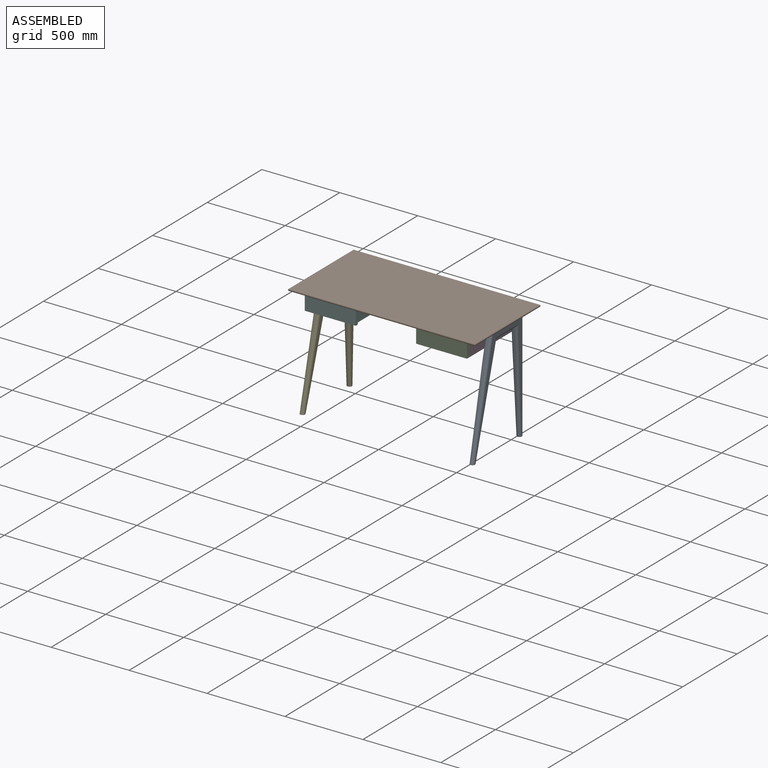
[diagram: assembled view]
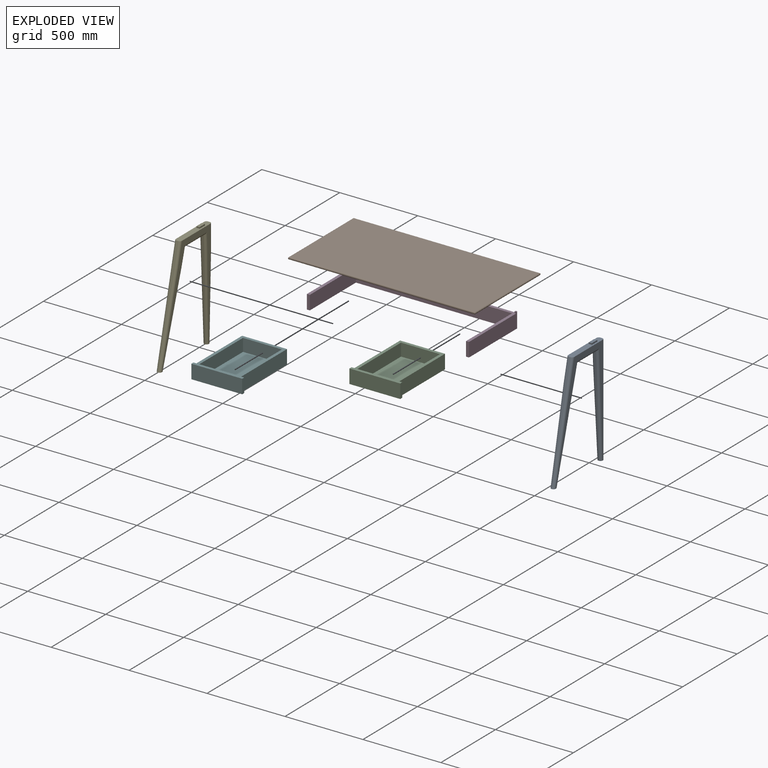
[diagram: exploded view]
GUIDED TOUR — MATED ASSEMBLY (Onshape document 491daf326bf80fedf2588b22, AutoMate assembly 491daf326bf80fedf2588b22_29d949f8aa3b8c9983fa21e3_d84c2a4d1bb332d2d92ca443_default)

This assembly has 6 components, labeled P0..P5 below (a component is one placed occurrence of a part; the same part can appear more than once), held together by 5 mates. A mate is a constraint between two components; its type names the relative motion it leaves free:
  PARALLEL — keeps the two listed directions parallel.
Axis/direction vectors are unit vectors and 'through' points are millimeter coordinates, both in the assembly's world frame.

MATES
  1. PARALLEL "Parallel 3": P3 <-> P1, direction (-1.000, 0.000, 0.000) through (6.17, 39.33, 83.26) mm
  2. PARALLEL "Parallel 2": P4 <-> P1, direction (-1.000, 0.000, 0.000) through (-1048.83, -10.67, 83.26) mm
  3. PARALLEL "Parallel 1": P0 <-> P1, direction (1.000, 0.000, 0.000) through (31.17, -10.67, 83.26) mm
  4. PARALLEL "Parallel 5": P5 <-> P3, direction (0.000, 0.000, 1.000) through (-1009.83, -401.67, 28.26) mm
  5. PARALLEL "Parallel 4": P2 <-> P3, direction (0.000, 0.000, 1.000) through (-7.83, -401.67, 28.26) mm

ASSEMBLY ORDER
  1. P3 — the base component [order verified]
  2. P1 [order verified]
  3. P5 [order verified]
  4. P2 [order verified]
  5. P0 [order verified]
  6. P4 [order verified]
(P1 verified with a relaxed clearance tolerance: the source model stores slight part interference there.)
Order-tag legend:
  [order verified] — this step's position reverses a verified removal order: the component was checked to insert without passing through the ones already placed.

Of the 6 components, 3 carry the full construction recipe — the FeatureScript program that regenerates the part's solid from scratch; the rest are supplied as boundary geometry only.
Each toured component is shown spotlighted twice — in the assembled view, then in the exploded view, where a leader line traces a displaced component back to its assembled socket (saturated green if recipe-attached, orange if geometry-only; every other component desaturated gray) — followed by its recipe or geometry summary and the mates that hold it.
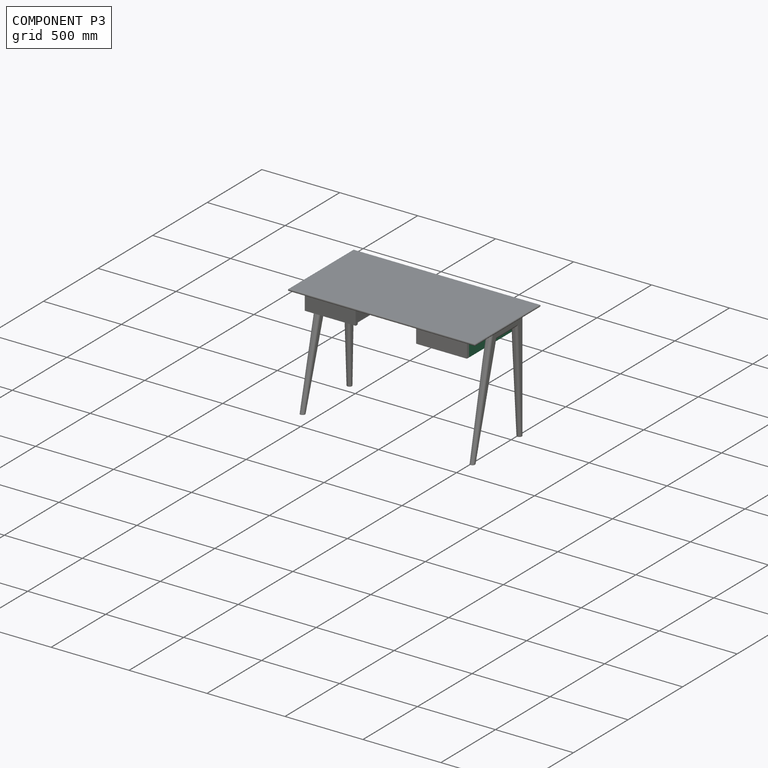
[diagram: component P3 — assembled]
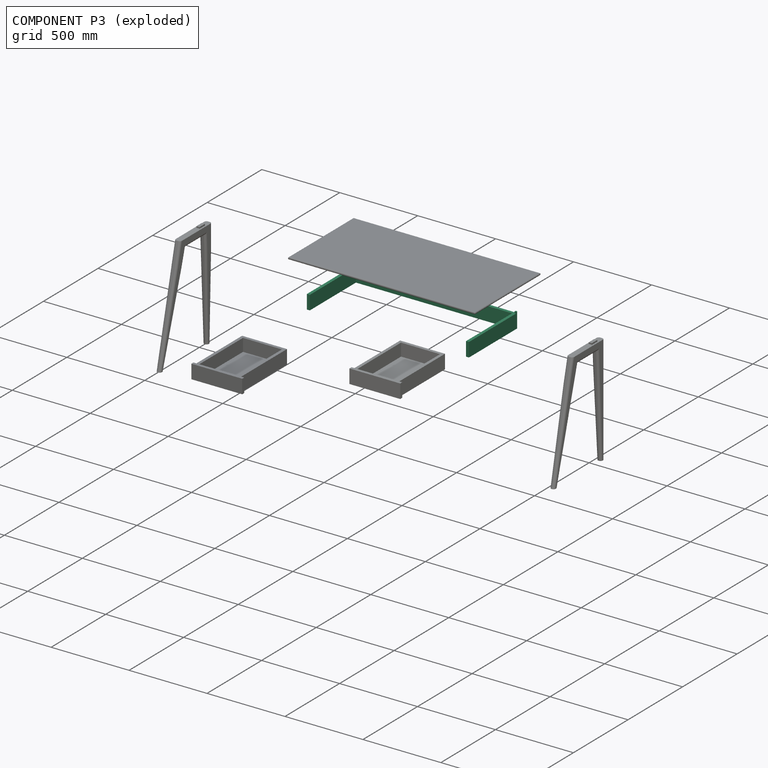
[diagram: component P3 — exploded]
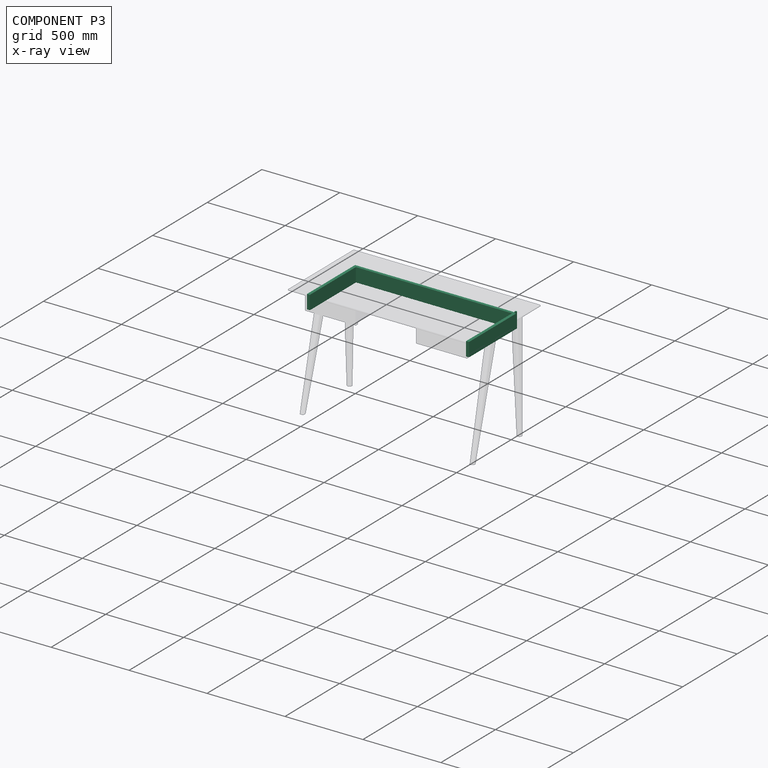
[diagram: component P3 — x-ray view]
COMPONENT P3 — recipe-attached (CADFS 00442519, mesh-verified: the recipe's output STEP matches this component's geometry to below the mesh-comparison resolution (tessellation chordal tolerance ~1.7 mm)).
Held by: PARALLEL mate "Parallel 3" to P1; PARALLEL mate "Parallel 5" to P5; PARALLEL mate "Parallel 4" to P2.
Construction recipe (FeatureScript — the CAD program that rebuilds this solid; sketch coordinates are in the units given by the * unit suffixes, e.g. mm):

FeatureScript 1511;
import(path : "onshape/std/geometry.fs", version : "1511.0");
import(path : "onshape/std/common.fs", version : "1511.0");
const mm = millimeter;
const VERTEX = EntityType.VERTEX;
const EDGE = EntityType.EDGE;
const FACE = EntityType.FACE;
const BODY = EntityType.BODY;
function v(x, y){return vector(x, y);}
function OD(order){return orderDisambiguation(order);}
function OSD(set){return originalSetDisambiguation(set);}
function TD(topology){return topologyDisambiguation(topology);}
function TDD(query){return trueDependencyDisambiguation(query);}
function sQuery(a, b, c) {return sketchEntityQuery(a, b, c);}

annotation { "Feature Type Name" : "Feature", "Feature Type Description" : "" }
export const myFeature = defineFeature(function(context is Context, id is Id, definition is map)
    precondition{}
    {
        {
            var Q0;
            Q0=qCreatedBy(makeId("Top.planeOp"),FACE);
            var sketch = newSketch(context, id + "F0", { "sketchPlane" : qUnion([Q0])});
            skLineSegment(sketch, "E0", {"start": v(0, 89) * mm, "end": v(0, 530) * mm});
            skLineSegment(sketch, "E1", {"start": v(0, 530) * mm, "end": v(-1040, 530) * mm});
            skLineSegment(sketch, "E2", {"start": v(-1040, 530) * mm, "end": v(-1040, 89) * mm});
            skLineSegment(sketch, "E3", {"start": v(-1040, 530) * mm, "end": v(-1021, 530) * mm, "construction": true});
            skLineSegment(sketch, "E4", {"start": v(-1021, 530) * mm, "end": v(-1021, 511) * mm, "construction": true});
            skLineSegment(sketch, "E5", {"start": v(-1021, 89) * mm, "end": v(-1021, 511) * mm});
            skLineSegment(sketch, "E6", {"start": v(-19, 89) * mm, "end": v(-19, 511) * mm});
            skLineSegment(sketch, "E7", {"start": v(-19, 511) * mm, "end": v(-1021, 511) * mm});
            skLineSegment(sketch, "E8", {"start": v(-1040, 89) * mm, "end": v(-1021, 89) * mm});
            skLineSegment(sketch, "E9", {"start": v(0, 89) * mm, "end": v(-19, 89) * mm});
            skSolve(sketch);
        }
        {
            var Q0;
            Q0=makeQuery(id+"F0.imprint","IMPRINT",FACE,{"disambiguationData":[TD([[makeQuery(id+"F0.imprint","IMPRINT",EDGE,{"derivedFrom":sQuery(id+"F0.wireOp",EDGE,"E0")}),1.0]])]});
            extrude(context, id + "F1", {"entities" : qUnion([Q0]), "oppositeDirection" : true, "depth" : 90 * mm});
        }
        {
            var Q0;
            Q0=qCreatedBy(makeId("Top.planeOp"),FACE);
            var sketch = newSketch(context, id + "F2", { "sketchPlane" : qUnion([Q0])});
            skLineSegment(sketch, "E10", {"start": v(0, 0) * mm, "end": v(0, 530) * mm, "construction": true});
            skLineSegment(sketch, "E11.bottom", {"start": v(0, 530) * mm, "end": v(-10, 530) * mm});
            skLineSegment(sketch, "E11.top", {"start": v(0, 520) * mm, "end": v(-10, 520) * mm});
            skLineSegment(sketch, "E11.left", {"start": v(0, 530) * mm, "end": v(0, 520) * mm});
            skLineSegment(sketch, "E11.right", {"start": v(-10, 530) * mm, "end": v(-10, 520) * mm});
            skSolve(sketch);
        }
        {
            var Q0;
            Q0 = qSketchRegion(id + "F2", true);
            extrude(context, id + "F3", {"entities" : qUnion([Q0]), "operationType" : NewBodyOperationType.ADD, "depth" : 10 * mm});
        }
    });
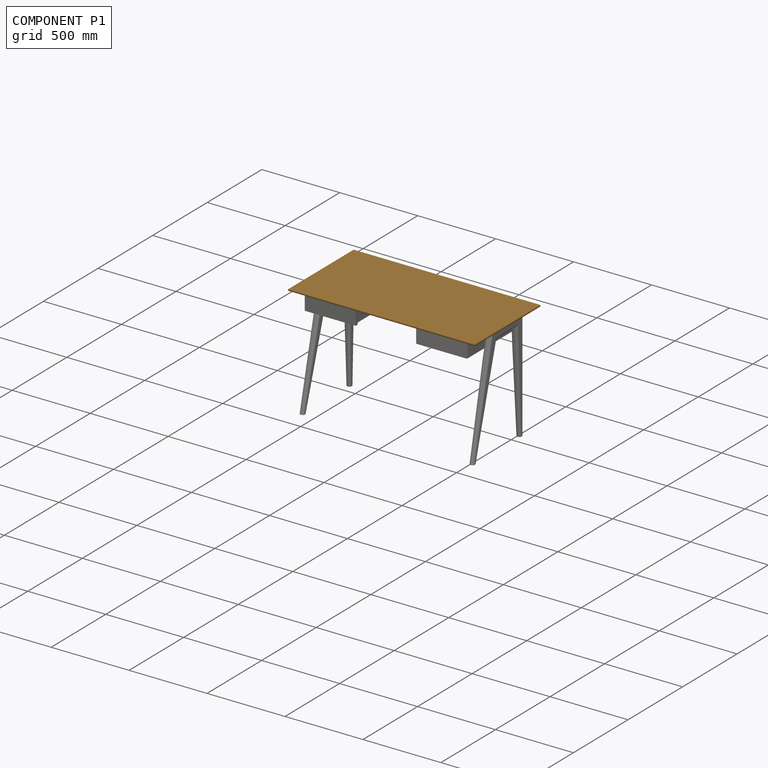
[diagram: component P1 — assembled]
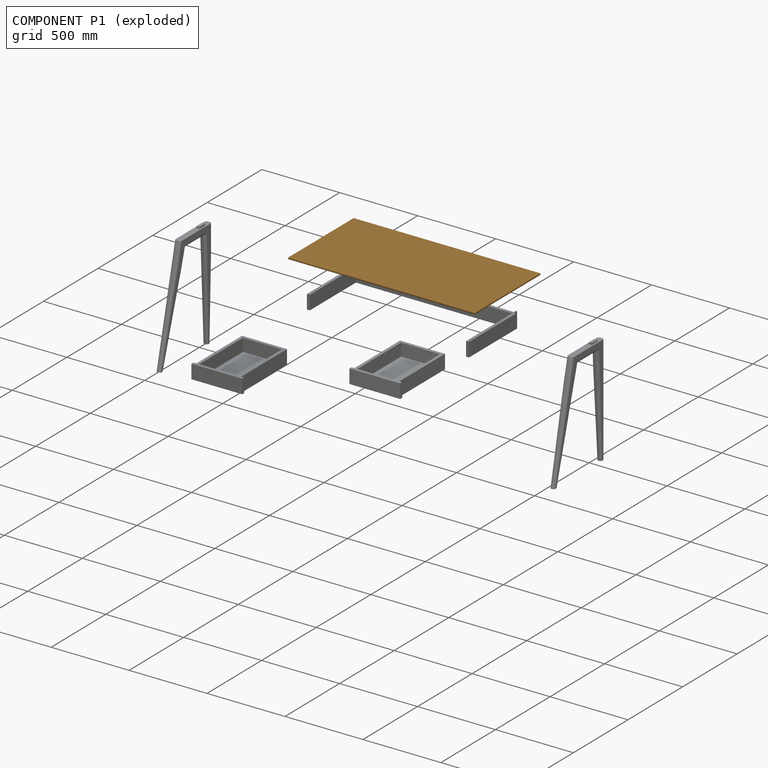
[diagram: component P1 — exploded]
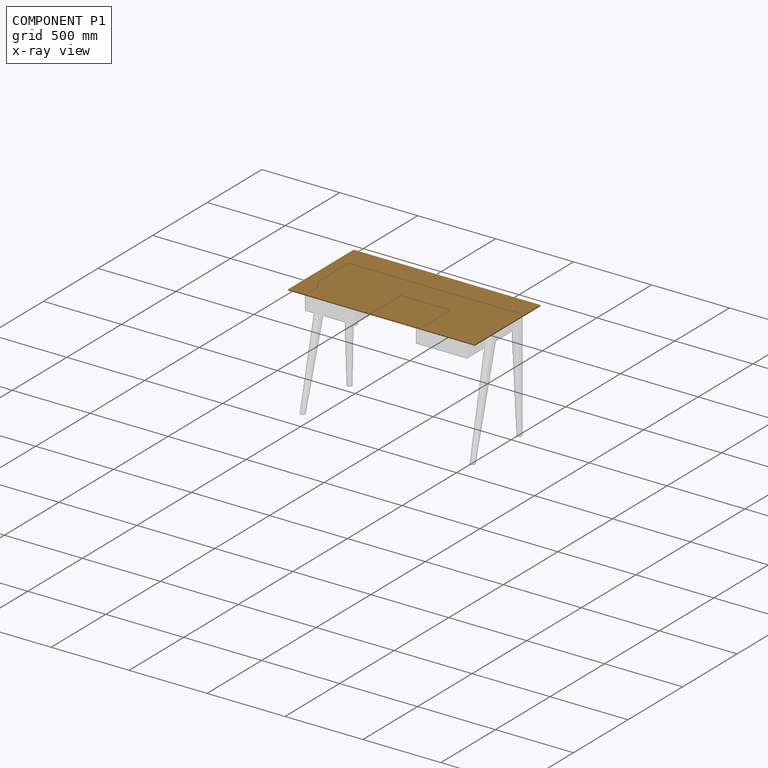
[diagram: component P1 — x-ray view]
COMPONENT P1 — geometry summary (no construction recipe available for this part):
  bounding box: 1200.0 x 600.0 x 32.0 mm
  B-rep topology: 1 solid, 33 faces, 144 edges
  volume: 21572592 mm^3 (94% of its bounding box)
  symmetry: mirror-symmetric across its x mid-plane
Held by: PARALLEL mate "Parallel 3" to P3; PARALLEL mate "Parallel 2" to P4; PARALLEL mate "Parallel 1" to P0.
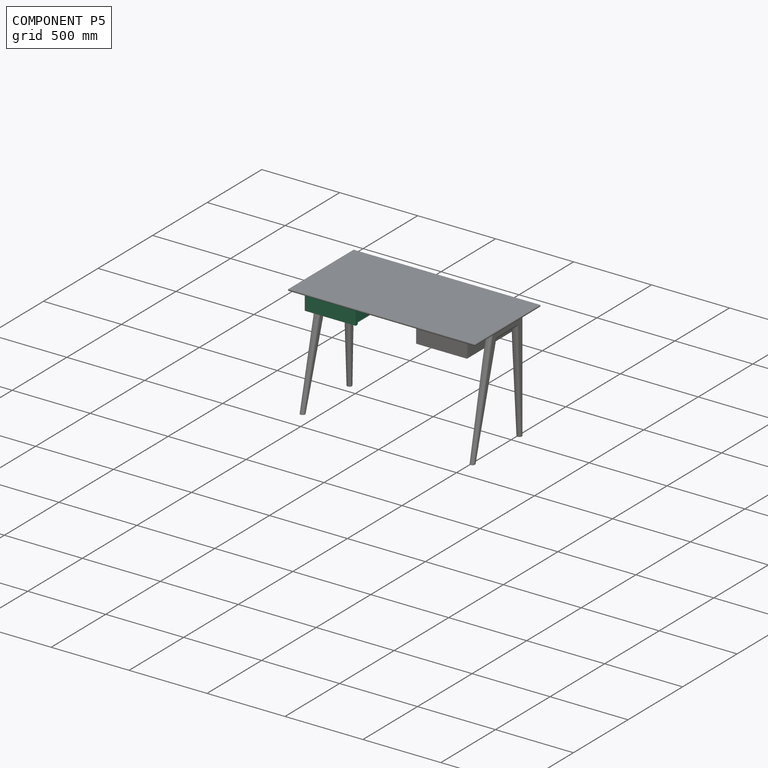
[diagram: component P5 — assembled]
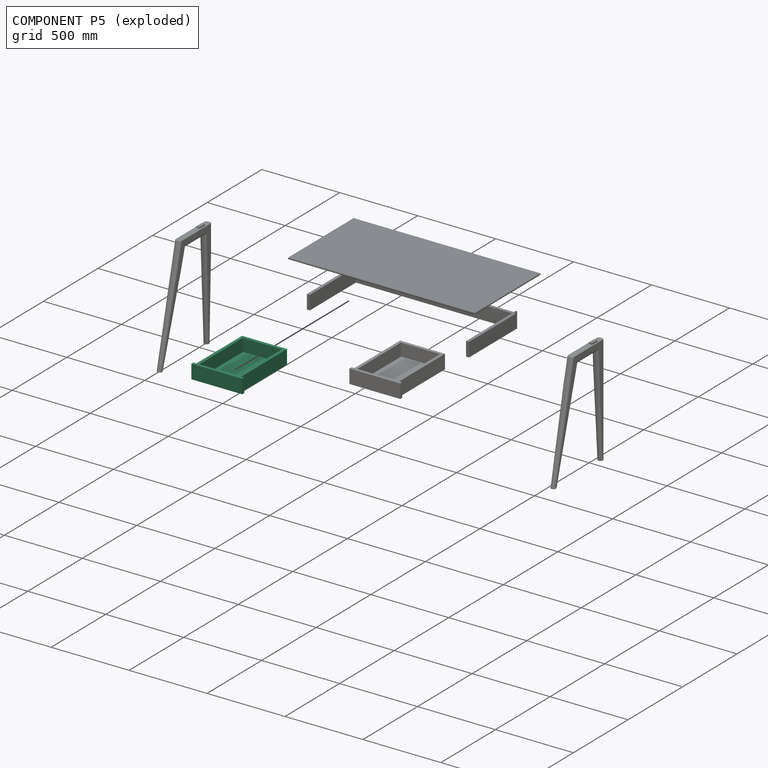
[diagram: component P5 — exploded]
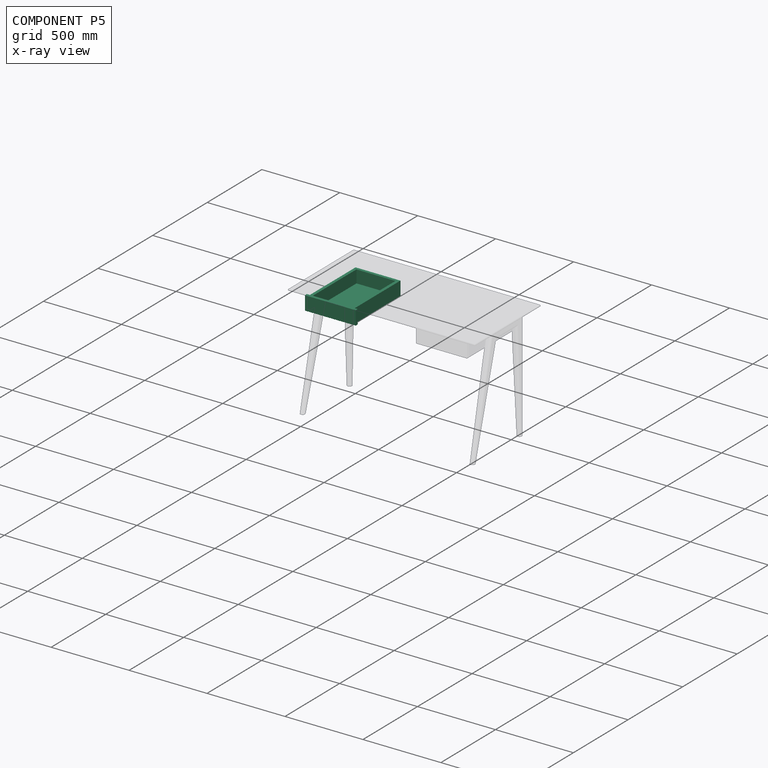
[diagram: component P5 — x-ray view]
COMPONENT P5 — same part as P2 (CADFS 00442521); its construction recipe is shown at P2.
Held by: PARALLEL mate "Parallel 5" to P3.
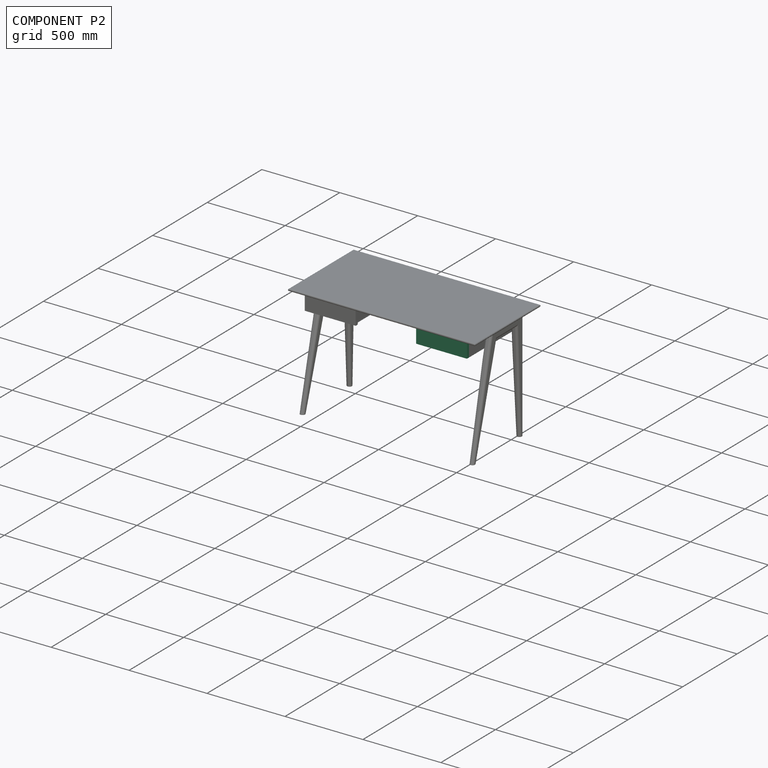
[diagram: component P2 — assembled]
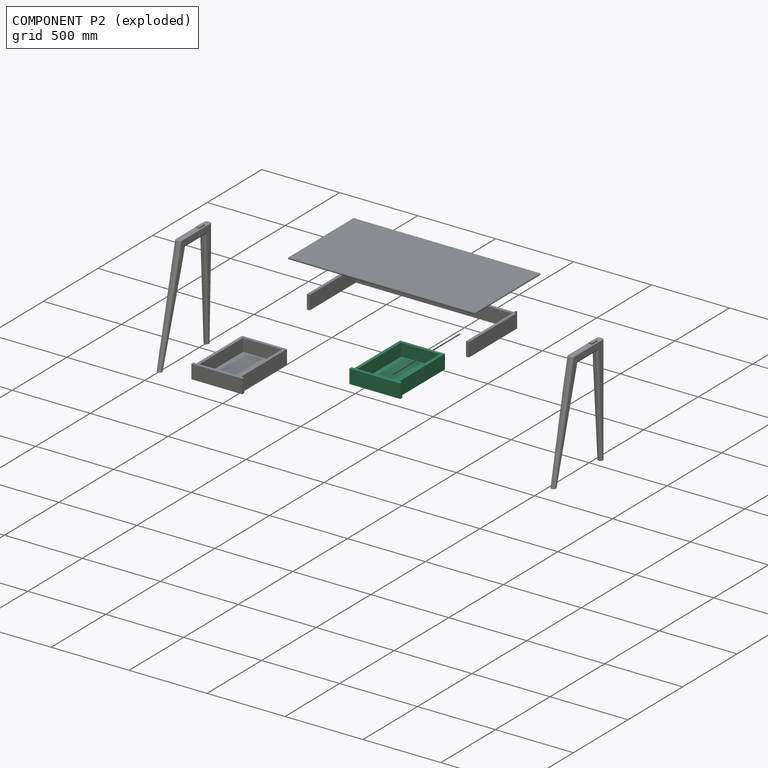
[diagram: component P2 — exploded]
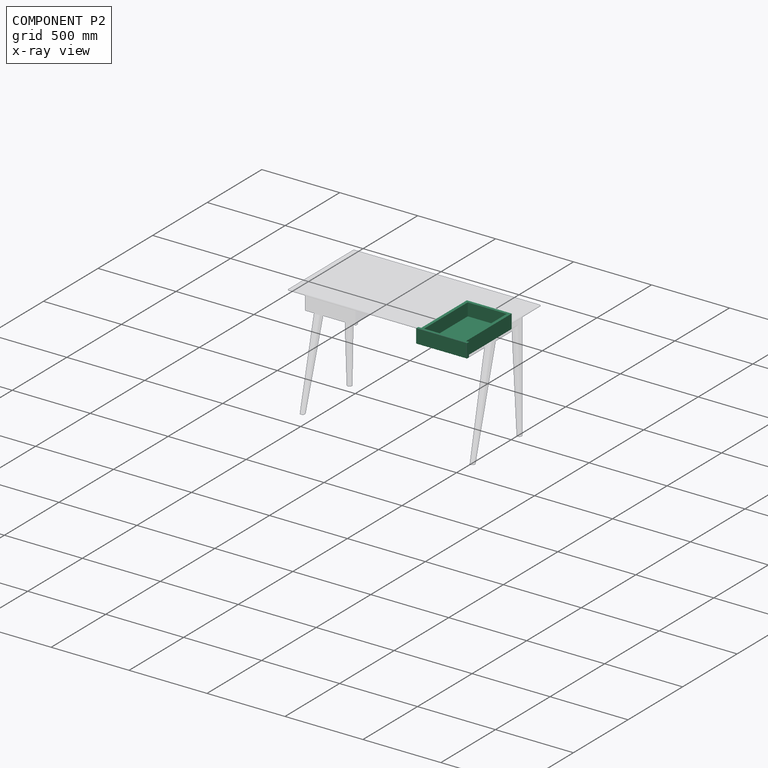
[diagram: component P2 — x-ray view]
COMPONENT P2 — recipe-attached (CADFS 00442521, mesh-verified: the recipe's output STEP matches this component's geometry to below the mesh-comparison resolution (tessellation chordal tolerance ~0.83 mm)).
Held by: PARALLEL mate "Parallel 4" to P3.
Construction recipe (FeatureScript — the CAD program that rebuilds this solid; sketch coordinates are in the units given by the * unit suffixes, e.g. mm):

FeatureScript 1511;
import(path : "onshape/std/geometry.fs", version : "1511.0");
import(path : "onshape/std/common.fs", version : "1511.0");
const mm = millimeter;
const VERTEX = EntityType.VERTEX;
const EDGE = EntityType.EDGE;
const FACE = EntityType.FACE;
const BODY = EntityType.BODY;
function v(x, y){return vector(x, y);}
function OD(order){return orderDisambiguation(order);}
function OSD(set){return originalSetDisambiguation(set);}
function TD(topology){return topologyDisambiguation(topology);}
function TDD(query){return trueDependencyDisambiguation(query);}
function sQuery(a, b, c) {return sketchEntityQuery(a, b, c);}

annotation { "Feature Type Name" : "Feature", "Feature Type Description" : "" }
export const myFeature = defineFeature(function(context is Context, id is Id, definition is map)
    precondition{}
    {
        {
            var Q0;
            Q0=qCreatedBy(makeId("Top.planeOp"),FACE);
            var sketch = newSketch(context, id + "F0", { "sketchPlane" : qUnion([Q0])});
            skLineSegment(sketch, "E0.bottom", {"start": v(0, 0) * mm, "end": v(-288, 0) * mm});
            skLineSegment(sketch, "E0.left", {"start": v(0, 19) * mm, "end": v(0, 437.77) * mm});
            skLineSegment(sketch, "E0.right", {"start": v(-288, 19) * mm, "end": v(-288, 437.77) * mm});
            skLineSegment(sketch, "E1.1", {"start": v(-19, 19) * mm, "end": v(-19, 418.77) * mm});
            skLineSegment(sketch, "E1.3", {"start": v(-269, 19) * mm, "end": v(-269, 418.77) * mm});
            skLineSegment(sketch, "E2", {"start": v(-288, 19) * mm, "end": v(-307, 19) * mm});
            skLineSegment(sketch, "E3", {"start": v(-307, 19) * mm, "end": v(-307, 0) * mm});
            skLineSegment(sketch, "E4", {"start": v(-307, 0) * mm, "end": v(-288, 0) * mm});
            skLineSegment(sketch, "E5", {"start": v(19, 15.77) * mm, "end": v(19, 0) * mm});
            skLineSegment(sketch, "E6", {"start": v(19, 0) * mm, "end": v(0, 0) * mm});
            skLineSegment(sketch, "E7", {"start": v(-288, 437.77) * mm, "end": v(0, 437.77) * mm});
            skLineSegment(sketch, "E8", {"start": v(0, 437.77) * mm, "end": v(0, 418.77) * mm});
            skLineSegment(sketch, "E9", {"start": v(-19, 418.77) * mm, "end": v(-269, 418.77) * mm});
            skPoint(sketch, "E10.end.orphan", {"position": v(0, 447.77) * mm});
            skLineSegment(sketch, "E11", {"start": v(-269, 19) * mm, "end": v(-19, 19) * mm});
            skLineSegment(sketch, "E12", {"start": v(0, 19) * mm, "end": v(19, 19) * mm});
            skLineSegment(sketch, "E13", {"start": v(19, 19) * mm, "end": v(19, 15.77) * mm});
            skPoint(sketch, "E14.orphan", {"position": v(0, 15.77) * mm});
            skPoint(sketch, "E1.2.start.orphan", {"position": v(-19, 15.77) * mm});
            skPoint(sketch, "E15.orphan", {"position": v(-269, 15.77) * mm});
            skSolve(sketch);
        }
        {
            var Q0;
            Q0 = qSketchRegion(id + "F0", true);
            extrude(context, id + "F1", {"entities" : qUnion([Q0]), "oppositeDirection" : true, "depth" : 90 * mm});
        }
        {
            var Q0;
            Q0=qCreatedBy(makeId("Top.planeOp"),FACE);
            cPlane(context, id + "F2", {"entities" : qUnion([Q0]), "cplaneType" : CPlaneType.OFFSET, "offset" : 85 * mm, "oppositeDirection" : true, "width" : 150 * mm, "height" : 150 * mm});
        }
        {
            var Q0;
            Q0=qCreatedBy(id+"F2.planeOp",FACE);
            var sketch = newSketch(context, id + "F3", { "sketchPlane" : qUnion([Q0])});
            skLineSegment(sketch, "E16", {"start": v(0, 0) * mm, "end": v(0, 19) * mm, "construction": true});
            skLineSegment(sketch, "E17", {"start": v(0, 19) * mm, "end": v(-19, 19) * mm, "construction": true});
            skLineSegment(sketch, "E18.0", {"start": v(-19, 19) * mm, "end": v(-19, 19) * mm});
            skLineSegment(sketch, "E18.2", {"start": v(-269, 19) * mm, "end": v(-269, 19) * mm});
            skLineSegment(sketch, "E19.0", {"start": v(-269, 432) * mm, "end": v(-19, 432) * mm});
            skLineSegment(sketch, "E19.1", {"start": v(-19, 19) * mm, "end": v(-19, 432) * mm});
            skLineSegment(sketch, "E19.2", {"start": v(-269, 19) * mm, "end": v(-269, 432) * mm});
            skLineSegment(sketch, "E19.3", {"start": v(-19, 19) * mm, "end": v(-269, 19) * mm});
            skSolve(sketch);
        }
        {
            var Q0;
            Q0 = qSketchRegion(id + "F3", true);
            extrude(context, id + "F4", {"entities" : qUnion([Q0]), "operationType" : NewBodyOperationType.ADD, "depth" : 4 * mm});
        }
    });
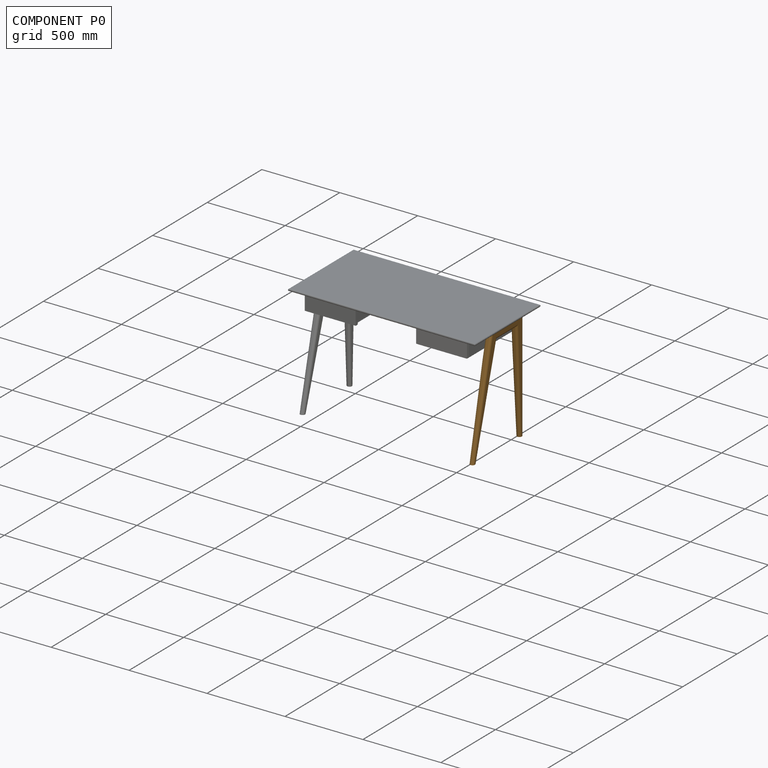
[diagram: component P0 — assembled]
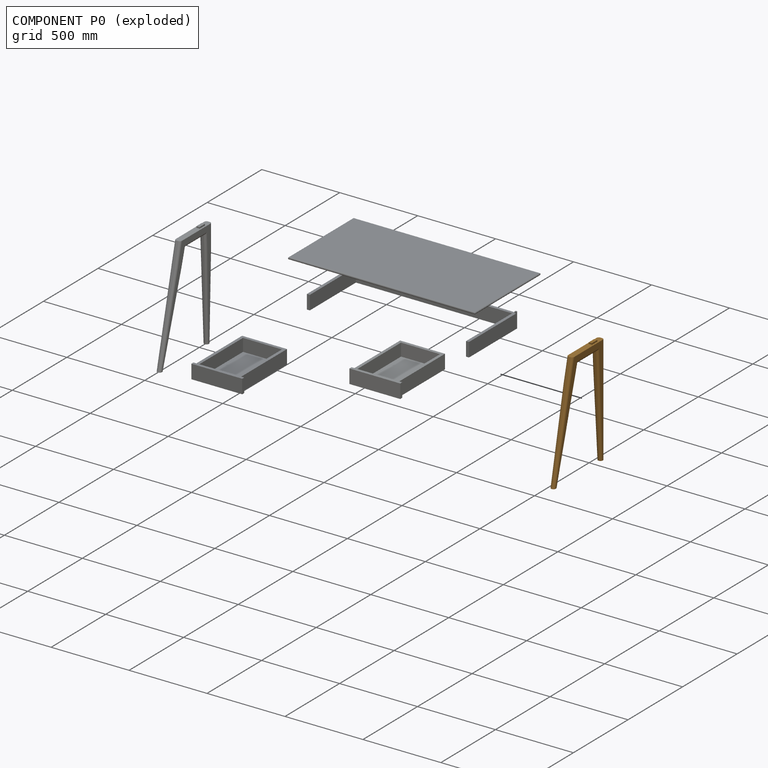
[diagram: component P0 — exploded]
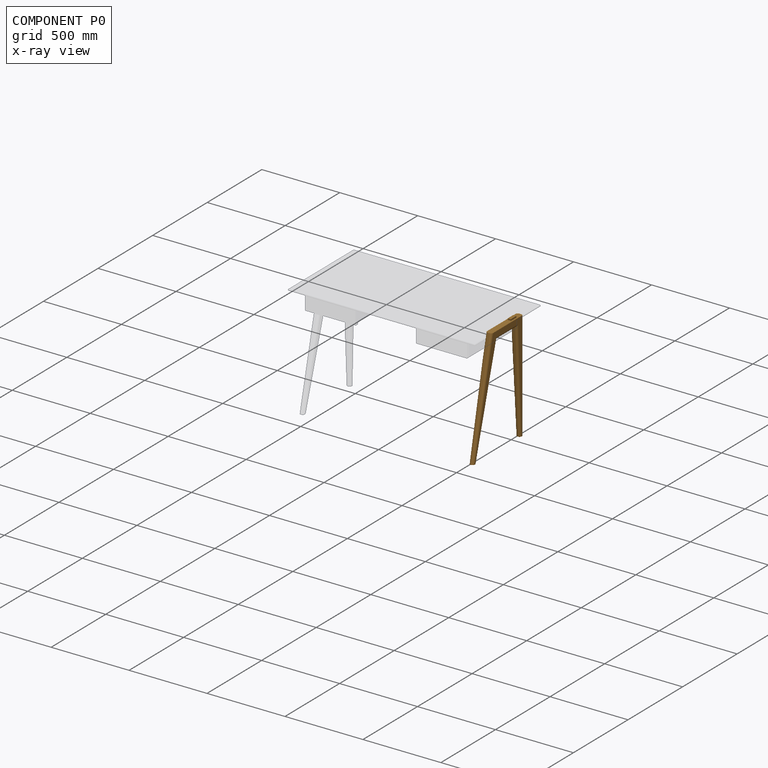
[diagram: component P0 — x-ray view]
COMPONENT P0 — geometry summary (no construction recipe available for this part):
  bounding box: 713.9 x 460.0 x 40.0 mm
  B-rep topology: 1 solid, 31 faces, 158 edges
  volume: 2517962 mm^3 (19% of its bounding box)
Held by: PARALLEL mate "Parallel 1" to P1.
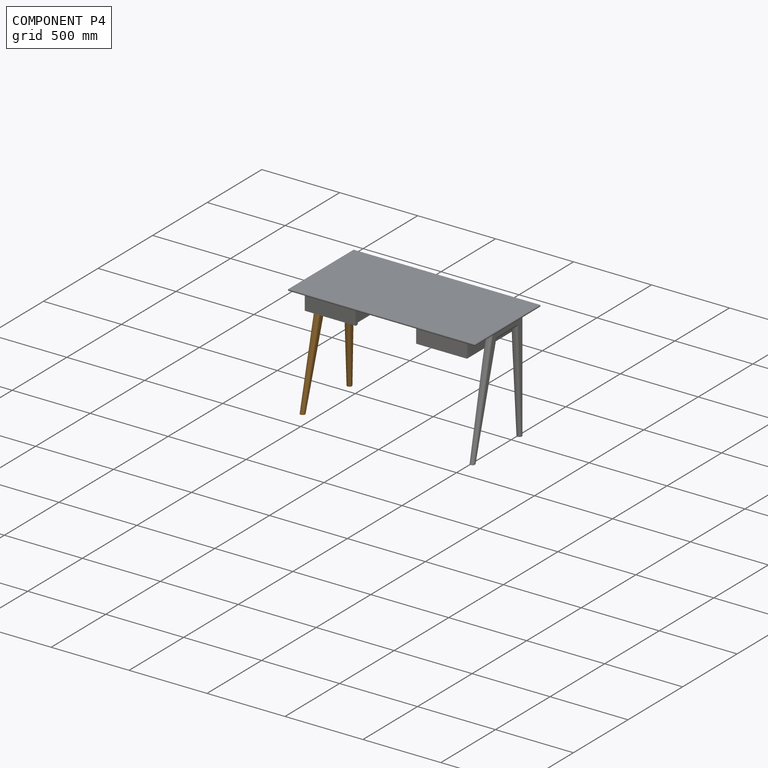
[diagram: component P4 — assembled]
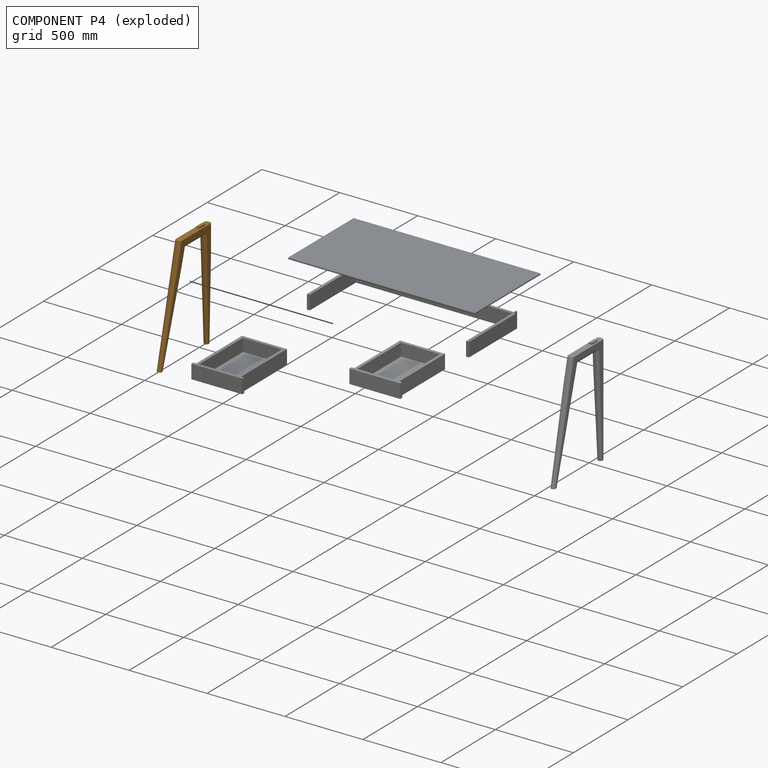
[diagram: component P4 — exploded]
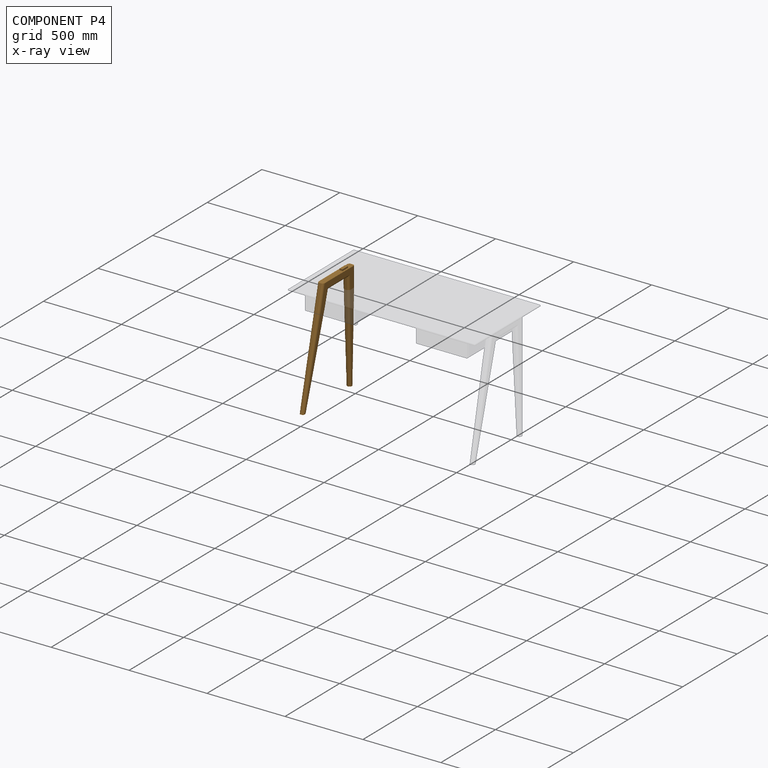
[diagram: component P4 — x-ray view]
COMPONENT P4 — geometry summary (no construction recipe available for this part):
  bounding box: 713.9 x 460.0 x 40.0 mm
  B-rep topology: 1 solid, 31 faces, 158 edges
  volume: 2517962 mm^3 (19% of its bounding box)
Held by: PARALLEL mate "Parallel 2" to P1.
PROVENANCE & LICENSES
Assembly (occurrences, transforms, mates, per-part STEP geometry): AutoMate dataset, Zenodo record 7776208, CC0.
Construction recipes: CADFS (HuggingFace VladPyatov/CADFS, CC-BY-4.0, layered over the ABC dataset), FeatureScript reconstruction programs keyed by ABC model id.
Join: ABC meta listings map ABC model id -> Onshape documentId; within a shared document, parts are matched by geometric signature (bounding-box dims + volume at 0.1% relative tolerance, exact B-rep face/solid counts).
Verification: 3 of this assembly's 6 components carry a recipe attachment, and every attachment is mesh-verified: the CADFS STEP and the AutoMate member STEP were compared as meshes in their shared local frame (symmetric sampled-point-to-mesh distance); worst across the 3 attachments: below the mesh-comparison resolution (tessellation chordal tolerance ~1.7 mm) on a 1134 mm part.
Renders: orthographic iso camera (az 35 / el 25); the floor grid conveys scale (grid pitch printed in each image; no ruler). In the exploded view each component is displaced by its stored offset vector: the offsets alone carry the explosion direction (mate normal/axis signs are not orientation cues and do not encode it), and separation distances are assigned per mate-chain, not proportionally to assembly-order depth.
